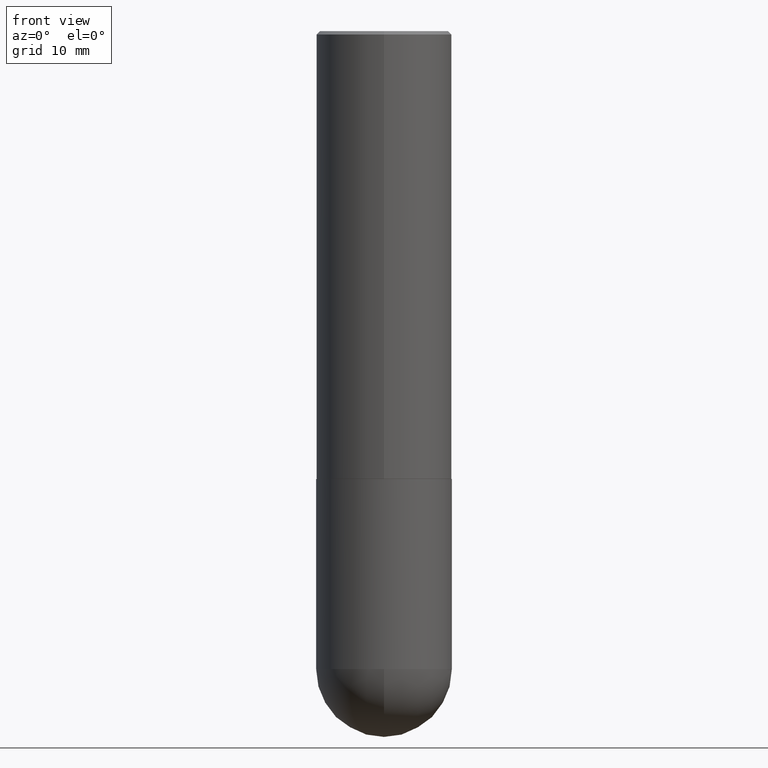
[diagram: clean part render]
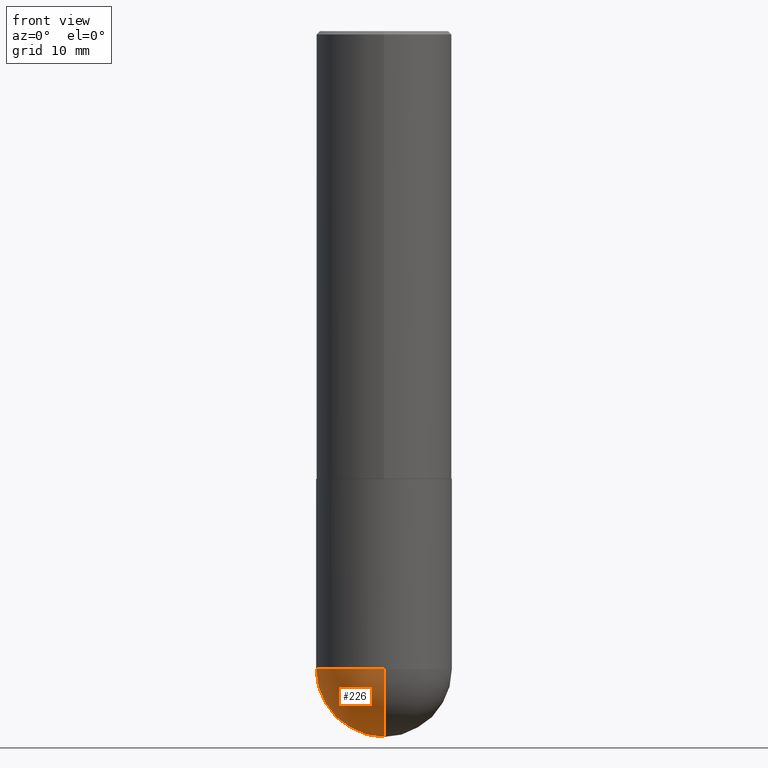
[diagram: same view with one face highlighted and labeled with its STEP entity id]
A machine part, front view. The second image highlights one B-rep face of the part: STEP entity #226.
In plain terms, the highlighted spherical surface has radius 10 mm.
Its self-contained STEP definition (entity closure, byte-faithful):
#4 = VERTEX_POINT ( 'NONE', #135 ) ;
#23 = DIRECTION ( 'NONE',  ( 6.982962677686265133E-15, 1.000000000000000000, 0.000000000000000000 ) ) ;
#25 = CARTESIAN_POINT ( 'NONE',  ( -2.797406750687426828E-15, -0.3937000000000133171, -3.700799999999998313 ) ) ;
#34 = ORIENTED_EDGE ( 'NONE', *, *, #284, .F. ) ;
#36 = DIRECTION ( 'NONE',  ( -2.445468806185136597E-29, 3.491481338843145583E-15, 1.000000000000000000 ) ) ;
#40 = AXIS2_PLACEMENT_3D ( 'NONE', #64, #36, #283 ) ;
#54 = CARTESIAN_POINT ( 'NONE',  ( 8.719071180016067419E-29, -1.339545650693076387E-14, -3.700800000000000090 ) ) ;
#64 = CARTESIAN_POINT ( 'NONE',  ( 9.050190957929953666E-29, -1.292127413879071357E-14, -3.700800000000000090 ) ) ;
#65 = CIRCLE ( 'NONE', #87, 0.3937000000000003830 ) ;
#66 = DIRECTION ( 'NONE',  ( -2.445468806185136597E-29, 3.491481338843145583E-15, 1.000000000000000000 ) ) ;
#82 = CARTESIAN_POINT ( 'NONE',  ( -0.3937000000000001054, -8.199362874132859889E-15, -3.700800000000000090 ) ) ;
#87 = AXIS2_PLACEMENT_3D ( 'NONE', #218, #181, #23 ) ;
#124 = VERTEX_POINT ( 'NONE', #207 ) ;
#125 = CIRCLE ( 'NONE', #358, 0.3937000000000003830 ) ;
#130 = AXIS2_PLACEMENT_3D ( 'NONE', #277, #66, #320 ) ;
#132 = EDGE_CURVE ( 'NONE', #124, #166, #125, .T. ) ;
#135 = CARTESIAN_POINT ( 'NONE',  ( 2.749192406205173147E-15, 0.3936999999999871158, -3.700800000000001866 ) ) ;
#149 = SPHERICAL_SURFACE ( 'NONE', #383, 0.3937000000000003830 ) ;
#160 = ORIENTED_EDGE ( 'NONE', *, *, #132, .T. ) ;
#166 = VERTEX_POINT ( 'NONE', #25 ) ;
#175 = FACE_OUTER_BOUND ( 'NONE', #386, .T. ) ;
#181 = DIRECTION ( 'NONE',  ( 1.000000000000000000, -6.982962677686265922E-15, 4.883557194083112340E-29 ) ) ;
#199 = ORIENTED_EDGE ( 'NONE', *, *, #339, .F. ) ;
#207 = CARTESIAN_POINT ( 'NONE',  ( 9.698686197413653023E-29, -1.474594553779209640E-14, -4.094500000000000028 ) ) ;
#218 = CARTESIAN_POINT ( 'NONE',  ( 8.719071180016067419E-29, -1.339545650693076387E-14, -3.700800000000000090 ) ) ;
#225 = VERTEX_POINT ( 'NONE', #82 ) ;
#226 = ADVANCED_FACE ( 'NONE', ( #175 ), #149, .T. ) ;
#271 = CIRCLE ( 'NONE', #40, 0.3937000000000001054 ) ;
#277 = CARTESIAN_POINT ( 'NONE',  ( 9.050190957929953666E-29, -1.292127413879071357E-14, -3.700800000000000090 ) ) ;
#278 = CARTESIAN_POINT ( 'NONE',  ( 8.719071180016067419E-29, -1.339545650693076387E-14, -3.700800000000000090 ) ) ;
#283 = DIRECTION ( 'NONE',  ( 1.000000000000000000, -6.982962677686266711E-15, 0.000000000000000000 ) ) ;
#284 = EDGE_CURVE ( 'NONE', #4, #225, #271, .T. ) ;
#320 = DIRECTION ( 'NONE',  ( 1.000000000000000000, -6.982962677686266711E-15, 0.000000000000000000 ) ) ;
#322 = CIRCLE ( 'NONE', #130, 0.3937000000000001054 ) ;
#337 = DIRECTION ( 'NONE',  ( -7.105427357600999492E-15, -1.000000000000000000, 0.000000000000000000 ) ) ;
#339 = EDGE_CURVE ( 'NONE', #124, #4, #65, .T. ) ;
#340 = DIRECTION ( 'NONE',  ( 6.982962677686265922E-15, 1.000000000000000000, -4.163344669033671690E-15 ) ) ;
#358 = AXIS2_PLACEMENT_3D ( 'NONE', #54, #400, #337 ) ;
#361 = DIRECTION ( 'NONE',  ( -1.000000000000000000, 6.982962677686265922E-15, -4.883557194083112340E-29 ) ) ;
#368 = EDGE_CURVE ( 'NONE', #225, #166, #322, .T. ) ;
#383 = AXIS2_PLACEMENT_3D ( 'NONE', #278, #361, #340 ) ;
#386 = EDGE_LOOP ( 'NONE', ( #199, #160, #389, #34 ) ) ;
#389 = ORIENTED_EDGE ( 'NONE', *, *, #368, .F. ) ;
#400 = DIRECTION ( 'NONE',  ( -1.000000000000000000, 7.105427357601001070E-15, -4.926315508542082329E-29 ) ) ;